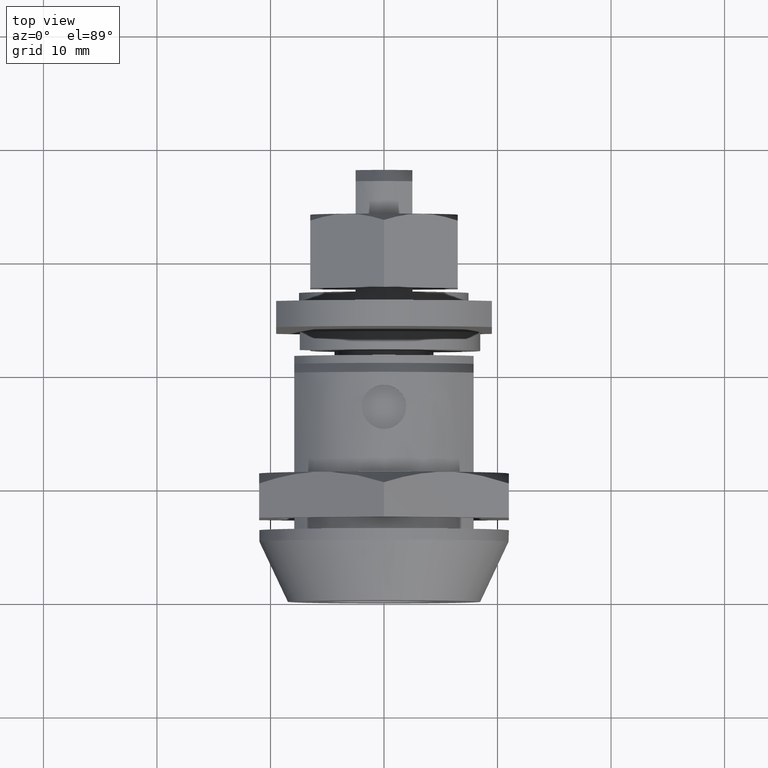
[diagram: clean part render]
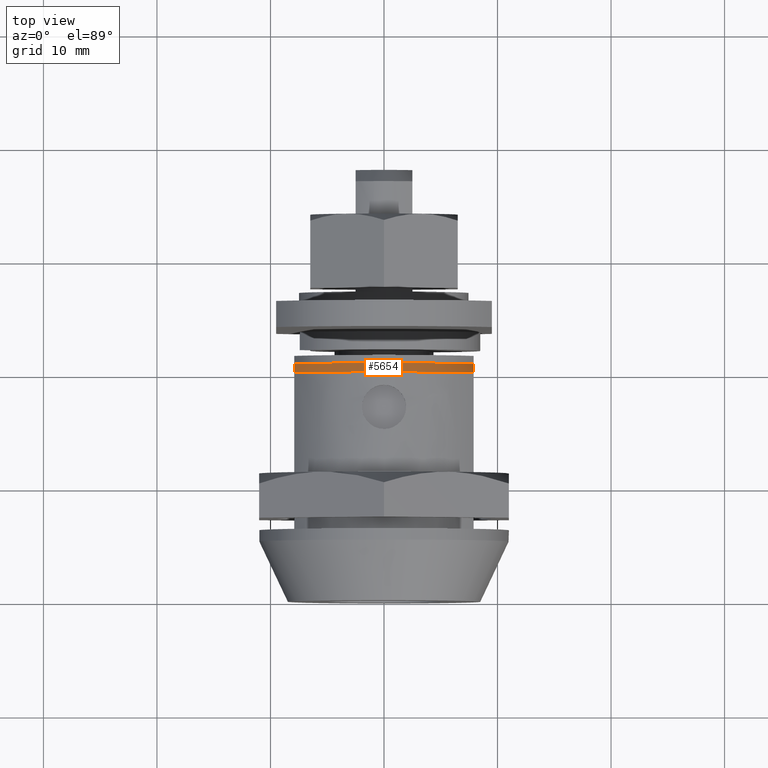
[diagram: same view with one face highlighted and labeled with its STEP entity id]
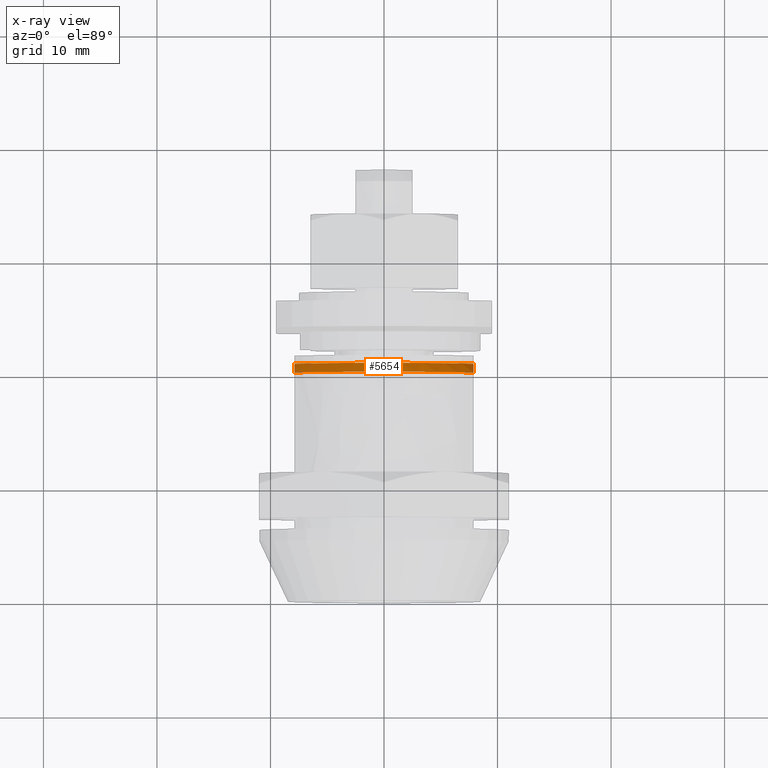
[diagram: x-ray of the same camera — body ghosted, the highlighted face saturated]
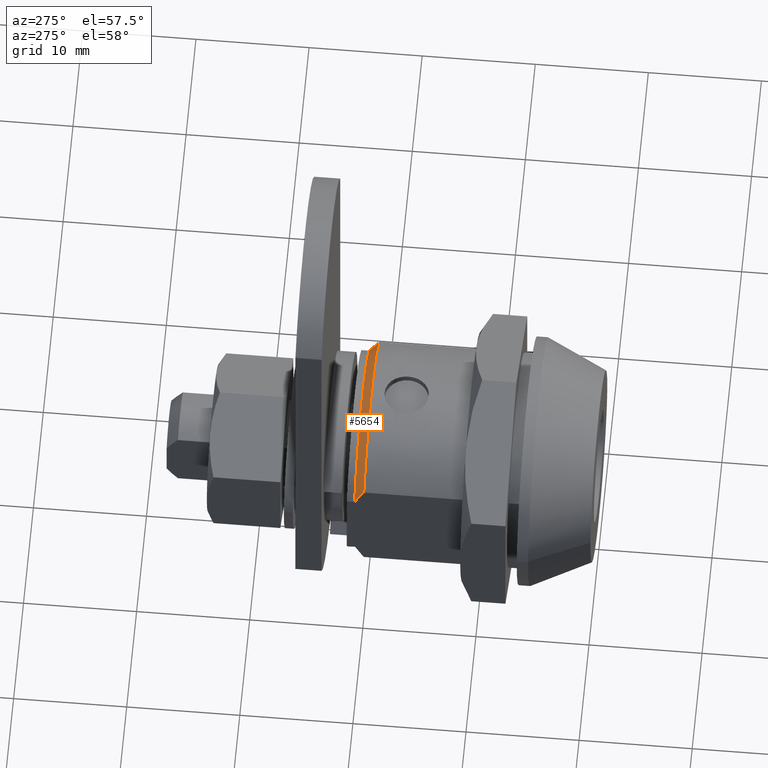
[diagram: same view with one face highlighted and labeled with its STEP entity id]
A machine part, top view. The second image highlights one B-rep face of the part: STEP entity #5654.
The next image is the same camera in x-ray: the body ghosted, the highlighted face saturated — about 0% of this face is hidden behind the body in this view.
A second angle (auxiliary view) of the same face is appended — the face is thin or edge-on in the first view.
In plain terms, the highlighted face is a freeform B-spline surface patch.
Its self-contained STEP definition (entity closure, byte-faithful):
#5272=CARTESIAN_POINT('',(7.900000000000091,20.899999999999999,3.644173431657760));
#5273=VERTEX_POINT('',#5272);
#5279=CARTESIAN_POINT('',(7.900000000000091,20.100000000000001,5.276362383309020));
#5280=VERTEX_POINT('',#5279);
#5281=CARTESIAN_POINT('',(7.900000000000091,20.100000000000001,5.276362383309020));
#5282=CARTESIAN_POINT('',(7.900000000000090,20.325871340028339,4.869683590263936));
#5283=CARTESIAN_POINT('',(7.900000000000089,20.537671296771340,4.456193384463441));
#5284=CARTESIAN_POINT('',(7.900000000000092,20.788537828774359,3.904482166102465));
#5285=CARTESIAN_POINT('',(7.900000000000091,20.845278653560680,3.774816574585143));
#5286=CARTESIAN_POINT('',(7.900000000000091,20.899999999999999,3.644173431657760));
#5287=B_SPLINE_CURVE_WITH_KNOTS('',3,(#5281,#5282,#5283,#5284,#5285,#5286),.UNSPECIFIED.,.F.,.U.,(4,2,4),(0.0,0.125000000000000,0.163063772600263),.UNSPECIFIED.);
#5288=EDGE_CURVE('',#5280,#5273,#5287,.T.);
#5368=CARTESIAN_POINT('',(-7.900000000000000,20.100000000000001,5.276362383309070));
#5369=VERTEX_POINT('',#5368);
#5375=CARTESIAN_POINT('',(-7.900000000000000,20.899999999999999,3.644173431657835));
#5376=VERTEX_POINT('',#5375);
#5377=CARTESIAN_POINT('',(-7.900000000000000,20.899999999999999,3.644173431657835));
#5378=CARTESIAN_POINT('',(-7.900000000000000,20.843809145611470,3.778325884949766));
#5379=CARTESIAN_POINT('',(-7.900000000000000,20.785552881729181,3.911293909301438));
#5380=CARTESIAN_POINT('',(-7.900000000000003,20.533787753885122,4.463902323952883));
#5381=CARTESIAN_POINT('',(-7.900000000000003,20.323513593897300,4.873928493990166));
#5382=CARTESIAN_POINT('',(-7.900000000000000,20.100000000000001,5.276362383309070));
#5383=B_SPLINE_CURVE_WITH_KNOTS('',3,(#5377,#5378,#5379,#5380,#5381,#5382),.UNSPECIFIED.,.F.,.U.,(4,2,4),(0.835805566339402,0.875000000000000,1.0),.UNSPECIFIED.);
#5384=EDGE_CURVE('',#5376,#5369,#5383,.T.);
#5456=CARTESIAN_POINT('',(7.900000000000095,20.100000000000001,5.276362383309020));
#5457=CARTESIAN_POINT('',(5.079057893489086,20.100000000000009,9.500000000000000));
#5458=CARTESIAN_POINT('',(-3.552714E-015,20.100000000000001,9.500000000000000));
#5459=CARTESIAN_POINT('',(-5.079057893489030,20.100000000000009,9.500000000000000));
#5460=CARTESIAN_POINT('',(-7.900000000000000,20.100000000000001,5.276362383309070));
#5468=(BOUNDED_CURVE()B_SPLINE_CURVE(2,(#5456,#5457,#5458,#5459,#5460),.UNSPECIFIED.,.F.,.U.)B_SPLINE_CURVE_WITH_KNOTS((3,2,3),(0.0,0.500000000000000,1.0),.UNSPECIFIED.)CURVE()GEOMETRIC_REPRESENTATION_ITEM()RATIONAL_B_SPLINE_CURVE((1.0,0.881874868295981,1.0,0.881874868295981,1.0))REPRESENTATION_ITEM(''));
#5469=EDGE_CURVE('',#5280,#5369,#5468,.T.);
#5555=CARTESIAN_POINT('',(7.900000000000096,20.899999999999999,3.644173431657763));
#5556=CARTESIAN_POINT('',(5.567809005642831,20.900000000000009,8.700000000000109));
#5557=CARTESIAN_POINT('',(-3.552714E-015,20.899999999999999,8.700000000000109));
#5558=CARTESIAN_POINT('',(-5.567809005642764,20.900000000000009,8.700000000000109));
#5559=CARTESIAN_POINT('',(-7.900000000000000,20.899999999999999,3.644173431657835));
#5567=(BOUNDED_CURVE()B_SPLINE_CURVE(2,(#5555,#5556,#5557,#5558,#5559),.UNSPECIFIED.,.F.,.U.)B_SPLINE_CURVE_WITH_KNOTS((3,2,3),(0.0,0.500000000000000,1.0),.UNSPECIFIED.)CURVE()GEOMETRIC_REPRESENTATION_ITEM()RATIONAL_B_SPLINE_CURVE((1.0,0.842279795966265,1.0,0.842279795966265,1.0))REPRESENTATION_ITEM(''));
#5568=EDGE_CURVE('',#5273,#5376,#5567,.T.);
#5630=CARTESIAN_POINT('',(-8.004043599774699,20.920000000000002,3.358226623220587));
#5631=CARTESIAN_POINT('',(-8.779089526688265,20.079499999999999,3.683409742669497));
#5632=CARTESIAN_POINT('',(-5.760148308846842,20.920000000000005,8.706357573564723));
#5633=CARTESIAN_POINT('',(-6.317913821932685,20.079500000000007,9.549409824783641));
#5634=CARTESIAN_POINT('',(0.039581965166380,20.920000000000002,8.679909749993680));
#5635=CARTESIAN_POINT('',(0.043414757991534,20.079499999999999,9.520401010923260));
#5636=CARTESIAN_POINT('',(5.839312239179599,20.920000000000005,8.653461926422637));
#5637=CARTESIAN_POINT('',(6.404743337915755,20.079500000000007,9.491392197062877));
#5638=CARTESIAN_POINT('',(8.034338324353945,20.920000000000002,3.285088688272993));
#5639=CARTESIAN_POINT('',(8.812317743895260,20.079499999999999,3.603189730034871));
#5647=(BOUNDED_SURFACE()B_SPLINE_SURFACE(1,2,((#5630,#5632,#5634,#5636,#5638),(#5631,#5633,#5635,#5637,#5639)),.UNSPECIFIED.,.F.,.F.,.U.)B_SPLINE_SURFACE_WITH_KNOTS((2,2),(3,2,3),(0.0,1.0),(0.0,11.552048405134819,23.104096810269638),.UNSPECIFIED.)GEOMETRIC_REPRESENTATION_ITEM()RATIONAL_B_SPLINE_SURFACE(((1.0,0.831469612302545,1.0,0.831469612302545,1.0),(1.0,0.831469612302545,1.0,0.831469612302545,1.0)))REPRESENTATION_ITEM('')SURFACE());
#5648=ORIENTED_EDGE('',*,*,#5469,.F.);
#5649=ORIENTED_EDGE('',*,*,#5288,.T.);
#5650=ORIENTED_EDGE('',*,*,#5568,.T.);
#5651=ORIENTED_EDGE('',*,*,#5384,.T.);
#5652=EDGE_LOOP('',(#5648,#5649,#5650,#5651));
#5653=FACE_OUTER_BOUND('',#5652,.T.);
#5654=ADVANCED_FACE('',(#5653),#5647,.T.);